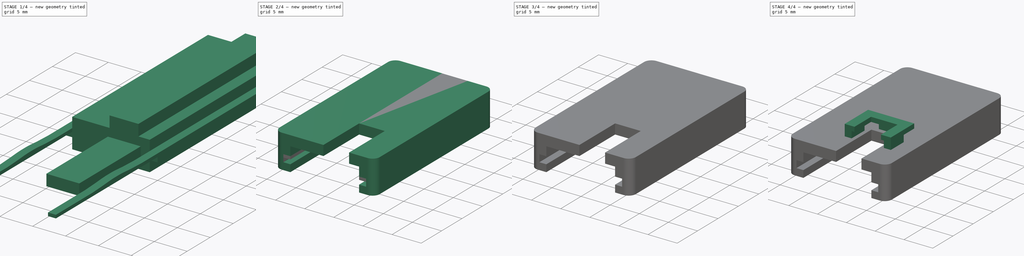
[diagram: build sequence overview — one tinted view per stage of 4, left to right]
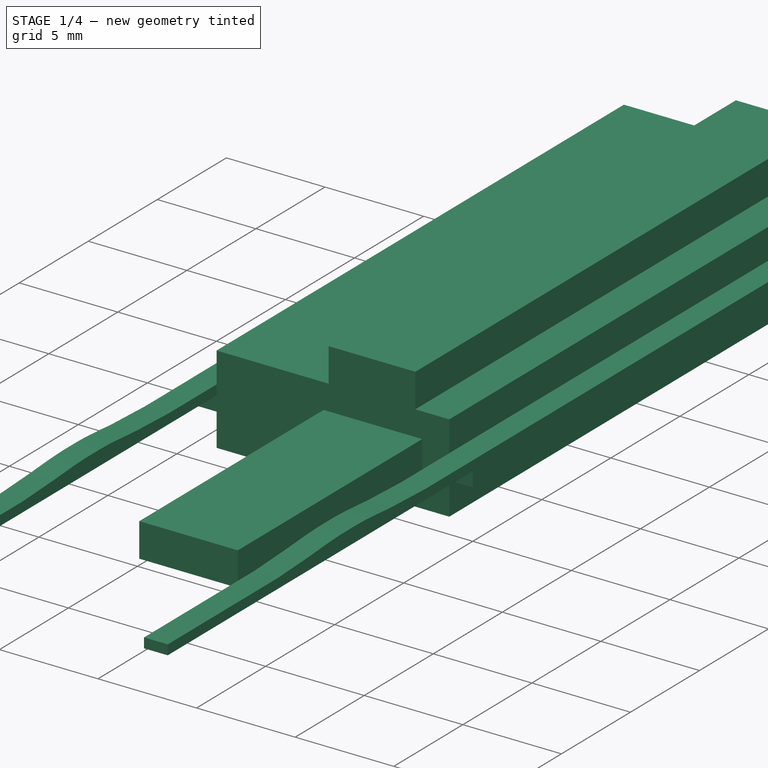
[diagram: stage 1 of 4 — iso view after this stage's code; geometry added in this stage tinted green]
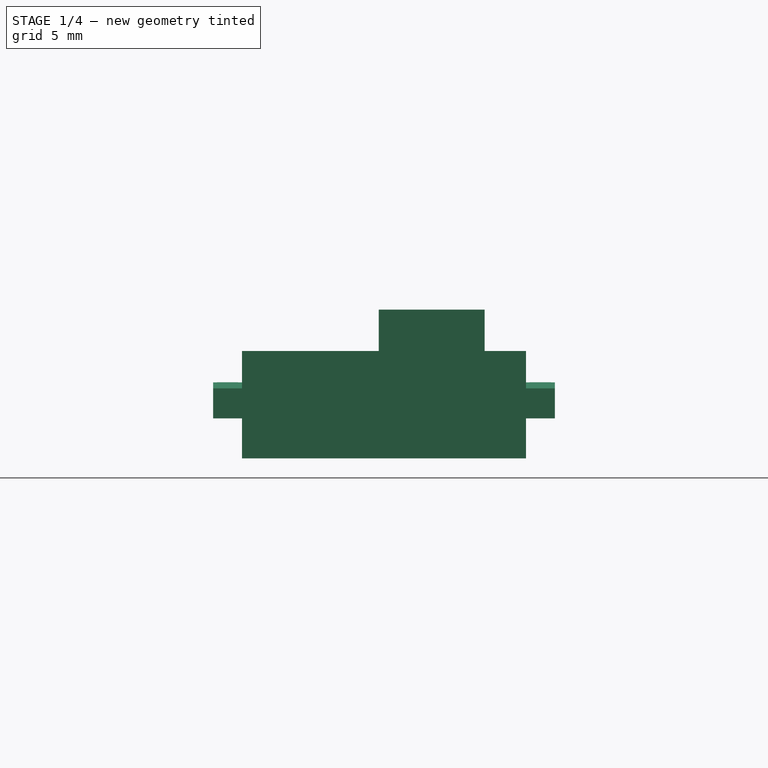
[diagram: stage 1 of 4 — front view after this stage's code; geometry added in this stage tinted green]
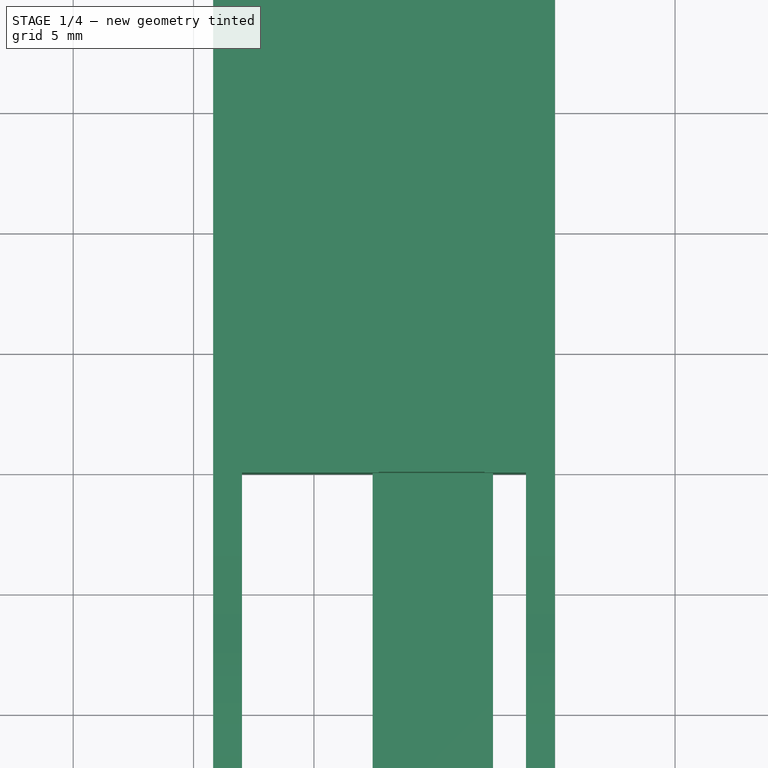
[diagram: stage 1 of 4 — top view after this stage's code; geometry added in this stage tinted green]
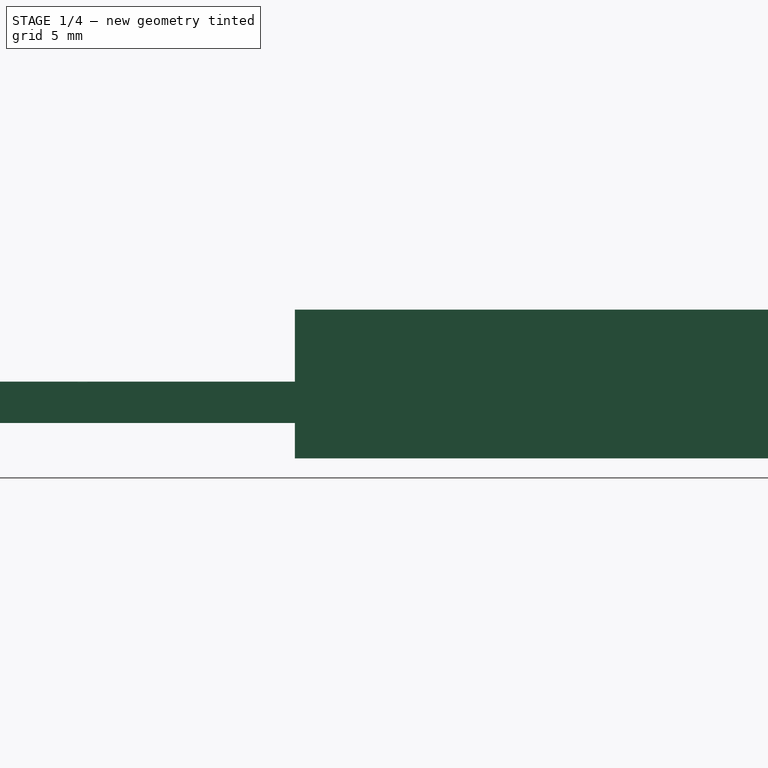
[diagram: stage 1 of 4 — right view after this stage's code; geometry added in this stage tinted green]
FCSTD DOCUMENT  (FreeCAD 0.21R33668 +26 (Git))
Label: HMV080_ANIMATION
License: All rights reserved
LicenseURL: http://en.wikipedia.org/wiki/All_rights_reserved
objects: Part::FeaturePython×5, Sketcher::SketchObject×4, PartDesign::Pad×4, PartDesign::Body×4, Part::Cut×4, App::DocumentObjectGroup×3, PartDesign::CoordinateSystem×1, App::FeaturePython×1, App::Part×1, Part::MultiFuse×1
note: 27 computed .brp shape members not serialized (recipe doc carries the construction recipe); baked Part::Feature solids carry a one-line shape summary decoded from their .brp

FEATURE [PartDesign::Body] Body014
  Group = -> [Sketch016,Pad014]
  Origin = -> Origin014
  Placement = pos=(0,0,-2.75) rot=(0,0,1;0rad)
  Tip = -> Pad014
FEATURE [Sketcher::SketchObject] Sketch023
  FullyConstrained = true
  MapMode = 5
  Placement = pos=(0,0,0) rot=(1,0,0;1.5708rad)
  Support = -> [XZ_Plane021]
  expr: Constraints[29] = .Constraints.pcbz
  sketch-geometry (19):
    g0: LineSegment StartX=3.81 StartY=1.27 StartZ=0 EndX=3.81 EndY=-0.28 EndZ=0
    g1: LineSegment StartX=3.81 StartY=1.27 StartZ=0 EndX=2.09 EndY=1.27 EndZ=0
    g2: LineSegment StartX=2.09 StartY=2.99 StartZ=0 EndX=-2.31 EndY=2.99 EndZ=0
    g3: LineSegment StartX=-2.31 StartY=1.27 StartZ=0 EndX=-7.99 EndY=1.27 EndZ=0
    g4: LineSegment StartX=-7.99 StartY=1.27 StartZ=0 EndX=-7.99 EndY=-0.28 EndZ=0
    g5: LineSegment StartX=-7.99 StartY=-0.28 StartZ=0 EndX=-9.19 EndY=-0.28 EndZ=0
    g6: LineSegment StartX=-9.19 StartY=-0.28 StartZ=0 EndX=-9.19 EndY=-1.53 EndZ=0
    g7: LineSegment StartX=-9.19 StartY=-1.53 StartZ=0 EndX=-7.99 EndY=-1.53 EndZ=0
    g8: LineSegment StartX=-7.99 StartY=-1.53 StartZ=0 EndX=-7.99 EndY=-3.19 EndZ=0
    g9: LineSegment StartX=-7.99 StartY=-3.19 StartZ=0 EndX=3.81 EndY=-3.19 EndZ=0
    g10: LineSegment StartX=3.81 StartY=-3.19 StartZ=0 EndX=3.81 EndY=-1.53 EndZ=0
    g11: LineSegment StartX=3.81 StartY=-1.53 StartZ=0 EndX=5.01 EndY=-1.53 EndZ=0
    g12: LineSegment StartX=5.01 StartY=-1.53 StartZ=0 EndX=5.01 EndY=-0.28 EndZ=0
    g13: LineSegment StartX=5.01 StartY=-0.28 StartZ=0 EndX=3.81 EndY=-0.28 EndZ=0
    g14: LineSegment StartX=-2.31 StartY=2.99 StartZ=0 EndX=-2.31 EndY=1.27 EndZ=0
    g15: LineSegment StartX=2.09 StartY=2.99 StartZ=0 EndX=2.09 EndY=1.27 EndZ=0
    g16: GeomPoint X=-0.11 Y=2.99 Z=0
    g17: GeomPoint X=-2.09 Y=-3.19 Z=0
    g18: GeomPoint X=-2.09 Y=-0.28 Z=0
  constraints (52):
    c: Vertical(g0)
    c: Coincident(g1,g0)
    c: Horizontal(g1)
    c: Horizontal(g2)
    c: Horizontal(g3)
    c: Coincident(g4,g3)
    c: Vertical(g4)
    c: Coincident(g5,g4)
    c: Horizontal(g5)
    c: Coincident(g6,g5)
    c: Vertical(g6)
    c: Coincident(g7,g6)
    c: Horizontal(g7)
    c: Coincident(g8,g7)
    c: Vertical(g8)
    c: Coincident(g9,g8)
    c: Horizontal(g9)
    c: Coincident(g10,g9)
    c: Vertical(g10)
    c: Coincident(g11,g10)
    c: Horizontal(g11)
    c: Coincident(g12,g11)
    c: Vertical(g12)
    c: Coincident(g13,g12)
    c: Coincident(g13,g0)
    c: Horizontal(g13)
    c: DistanceX(g7,g4) = 0
    c: DistanceX(g0,g10) = 0
    c: DistanceX(g2,g2) = 4.4
    c: DistanceY(g6,g6) = 1.25
    c: DistanceY(g12,g12) = 1.25  'pcbz'
    c: DistanceY(g4,g4) = 1.55
    c: DistanceY(g0,g0) = 1.55
    c: DistanceY(g10,g10) = 1.66
    c: DistanceY(g1,g2) = 1.72
    c: DistanceY(g8,g7) = 1.66
    c: Coincident(g14,g2)
    c: Coincident(g14,g3)
    c: Coincident(g15,g2)
    c: Coincident(g15,g1)
    c: Vertical(g15)
    c: Vertical(g14)
    c: DistanceY(g-1,g2) = 2.99
    c: DistanceX(g5,g12) = 14.2
    c: Symmetric(g2,g2,g16)
    c: DistanceX(g16,g12) = 5.12
    c: Symmetric(g9,g8,g17)
    c: DistanceX(g17,g-1) = 2.09
    c: DistanceX(g9,g9) = 11.8
    c: Vertical(g18,g17)
    c: Symmetric(g12,g5,g18)
    c: DistanceX(g17,g16) = 1.98
FEATURE [PartDesign::Pad] Pad021
  Direction = (0,-1,-2e-16)
  Length = 29.5
  Length2 = 10
  Placement = pos=(0,0,0) rot=(1,0,0;1.5708rad)
  Profile = -> Sketch023
  ReferenceAxis = -> Sketch023 [N_Axis]
  Reversed = true
  Type = 0
FEATURE [PartDesign::Body] Body021
  Group = -> [Sketch023,Pad021]
  Origin = -> Origin021
  Placement = pos=(0,-22.1,0) rot=(0,0,1;0rad)
  Tip = -> Pad021
FEATURE [Sketcher::SketchObject] Sketch024
  FullyConstrained = true
  MapMode = 5
  Support = -> [XY_Plane022]
  sketch-geometry (5):
    g0: LineSegment StartX=2.43874 StartY=6.99 StartZ=0 EndX=-2.56126 EndY=6.99 EndZ=0
    g1: LineSegment StartX=-2.56126 StartY=6.99 StartZ=0 EndX=-2.56126 EndY=-13.35 EndZ=0
    g2: LineSegment StartX=2.43874 StartY=6.99 StartZ=0 EndX=2.43874 EndY=-13.35 EndZ=0
    g3: LineSegment StartX=-2.56126 StartY=-13.35 StartZ=0 EndX=2.43874 EndY=-13.35 EndZ=0
    g4: GeomPoint X=-0.06126 Y=6.99 Z=0
  constraints (13):
    c: Horizontal(g0)
    c: Coincident(g1,g0)
    c: Vertical(g1)
    c: Coincident(g2,g0)
    c: Vertical(g2)
    c: Coincident(g3,g1)
    c: Coincident(g3,g2)
    c: Horizontal(g3)
    c: Symmetric(g0,g0,g4)
    c: DistanceY(g-1,g4) = 6.99
    c: DistanceY(g2,g2) = 20.34
    c: DistanceX(g0,g0) = 5
    c: DistanceX(g4,g-1) = 0.06126
FEATURE [PartDesign::Pad] Pad022
  Direction = (0,0,1)
  Length = 1.72
  Length2 = 10
  Profile = -> Sketch024
  ReferenceAxis = -> Sketch024 [N_Axis]
  Reversed = true
  Type = 0
FEATURE [Part::FeaturePython] b_HMV080_flex_slot_mound_001_002  label="HMV080_flex-slot-mound_003"  # a2plus imported part (geometry in sourceFile) (typed FeaturePython)
  Placement = pos=(3.80823,-22.1005,-0.28216) rot=(0,0,1;1.5708rad)
  a2p_Version = 0.4.67
  fixedPosition = false
  objectType = a2pPart
  sourceFile = .\HMV080_flex-slot-mound.FCStd
  subassemblyImport = false
  timeLastImport = 1.73014e+09
  updateColors = true
FEATURE [Part::FeaturePython] b_HMV080_flex_slot_mound_001_003  label="HMV080_flex-slot-mound_004"  # a2plus imported part (geometry in sourceFile) (typed FeaturePython)
  Placement = pos=(-9.18777,-22.1005,-0.28216) rot=(0,0,1;1.5708rad)
  a2p_Version = 0.4.67
  fixedPosition = false
  objectType = a2pPart
  sourceFile = .\HMV080_flex-slot-mound.FCStd
  subassemblyImport = false
  timeLastImport = 1.73014e+09
  updateColors = true
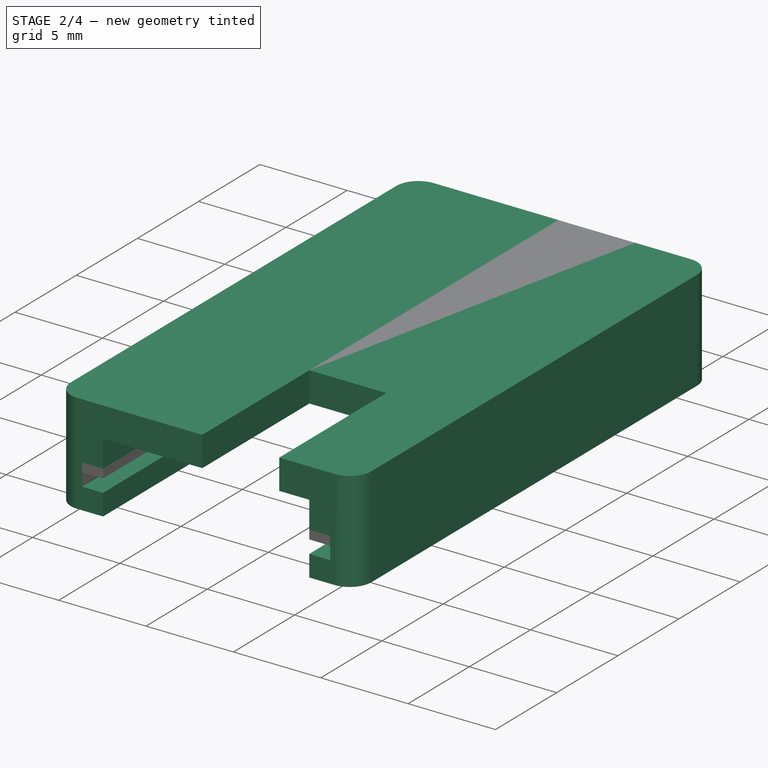
[diagram: stage 2 of 4 — iso view after this stage's code; geometry added in this stage tinted green]
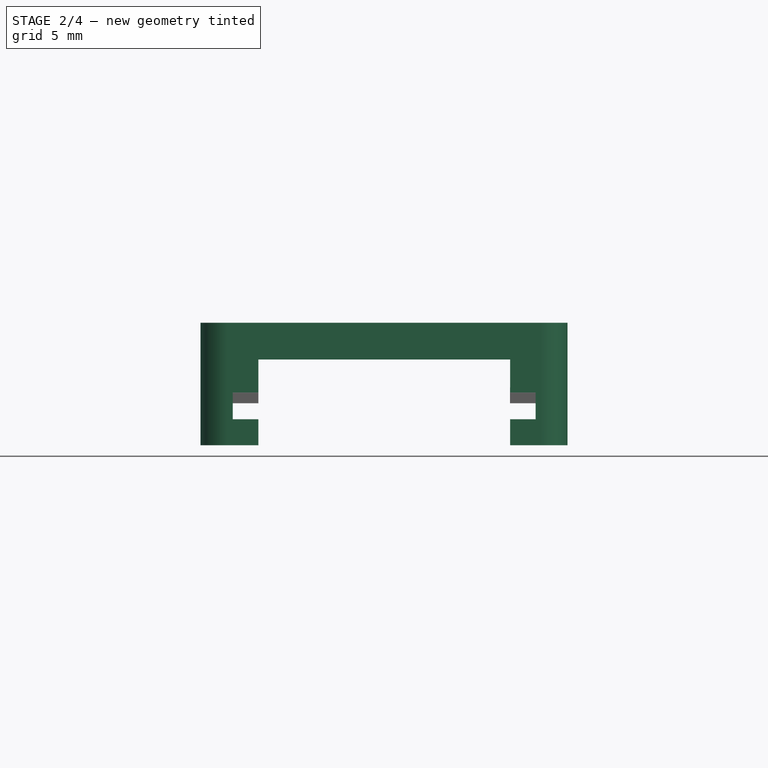
[diagram: stage 2 of 4 — front view after this stage's code; geometry added in this stage tinted green]
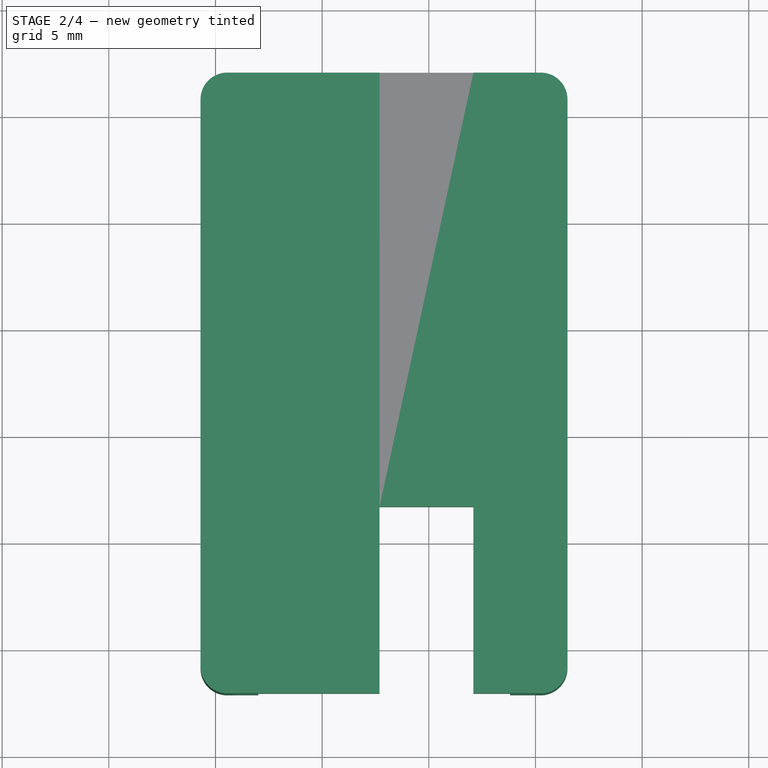
[diagram: stage 2 of 4 — top view after this stage's code; geometry added in this stage tinted green]
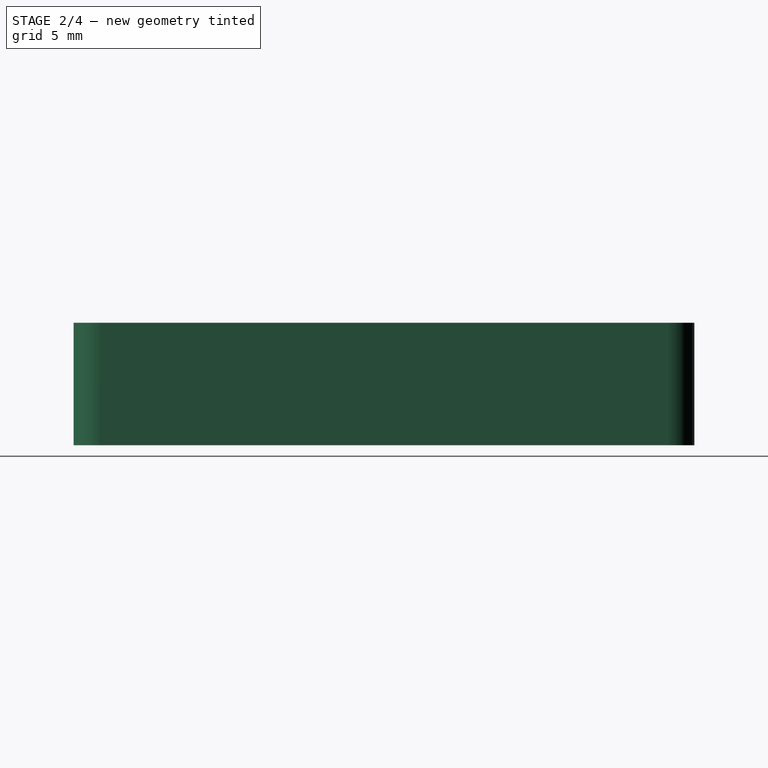
[diagram: stage 2 of 4 — right view after this stage's code; geometry added in this stage tinted green]
FEATURE [Sketcher::SketchObject] Sketch016
  FullyConstrained = true
  MapMode = 5
  Support = -> [XY_Plane014]
  expr: Constraints[23] = .Constraints.arc1
  expr: Constraints[24] = .Constraints.arc1
  expr: Constraints[25] = .Constraints.arc1
  sketch-geometry (12):
    g0: LineSegment StartX=-9.45 StartY=7 StartZ=0 EndX=5.25 EndY=7 EndZ=0
    g1: LineSegment StartX=6.5 StartY=5.75 StartZ=0 EndX=6.5 EndY=-20.85 EndZ=0
    g2: LineSegment StartX=5.25 StartY=-22.1 StartZ=0 EndX=-9.45 EndY=-22.1 EndZ=0
    g3: LineSegment StartX=-10.7 StartY=-20.85 StartZ=0 EndX=-10.7 EndY=5.75 EndZ=0
    g4: ArcOfCircle CenterX=-9.45 CenterY=5.75 CenterZ=0 NormalX=0 NormalY=0 NormalZ=1 AngleXU=0 Radius=1.25 StartAngle=1.5708 EndAngle=3.14159
    g5: GeomPoint X=-10.7 Y=7 Z=0
    g6: ArcOfCircle CenterX=5.25 CenterY=5.75 CenterZ=0 NormalX=0 NormalY=0 NormalZ=1 AngleXU=0 Radius=1.25 StartAngle=6e-16 EndAngle=1.5708
    g7: GeomPoint X=6.5 Y=7 Z=0
    g8: ArcOfCircle CenterX=5.25 CenterY=-20.85 CenterZ=0 NormalX=0 NormalY=0 NormalZ=1 AngleXU=0 Radius=1.25 StartAngle=4.71239 EndAngle=6.28319
    g9: GeomPoint X=6.5 Y=-22.1 Z=0
    g10: ArcOfCircle CenterX=-9.45 CenterY=-20.85 CenterZ=0 NormalX=0 NormalY=0 NormalZ=1 AngleXU=0 Radius=1.25 StartAngle=3.14159 EndAngle=4.71239
    g11: GeomPoint X=-10.7 Y=-22.1 Z=0
  constraints (28):
    c: Horizontal(g0)
    c: Horizontal(g2)
    c: Vertical(g1)
    c: Vertical(g3)
    c: DistanceY(g-1,g7) = 7
    c: DistanceX(g-1,g7) = 6.5
    c: PointOnObject(g5,g0)
    c: PointOnObject(g5,g3)
    c: Tangent(g0,g4) = 1.5708
    c: Tangent(g3,g4) = 1.5708
    c: Diameter(g4) = 2.5  'arc1'
    c: PointOnObject(g7,g0)
    c: PointOnObject(g7,g1)
    c: Tangent(g0,g6) = 1.5708
    c: Tangent(g1,g6) = 1.5708
    c: PointOnObject(g9,g1)
    c: PointOnObject(g9,g2)
    c: Tangent(g1,g8) = 1.5708
    c: Tangent(g2,g8) = 1.5708
    c: PointOnObject(g11,g2)
    c: PointOnObject(g11,g3)
    c: Tangent(g2,g10) = 1.5708
    c: Tangent(g3,g10) = 1.5708
    c: Diameter(g6) = 2.5
    c: Diameter(g8) = 2.5
    c: Diameter(g10) = 2.5
    c: DistanceX(g5,g-1) = 10.7
    c: DistanceY(g9,g-1) = 22.1
FEATURE [PartDesign::Pad] Pad014
  Direction = (0,0,1)
  Length = 5.74
  Length2 = 10
  Profile = -> Sketch016
  ReferenceAxis = -> Sketch016 [N_Axis]
  Type = 0
FEATURE [PartDesign::Body] Body022
  Group = -> [Sketch024,Pad022]
  Origin = -> Origin022
  Placement = pos=(0,0,2.99) rot=(0,0,1;0rad)
  Tip = -> Pad022
FEATURE [Part::Cut] Cut006
  Base = -> Body021
  Tool = -> Body022
FEATURE [Part::Cut] Cut007  label="inner_shell_slots_Cut007"
  Base = -> Body014
  Tool = -> Cut006
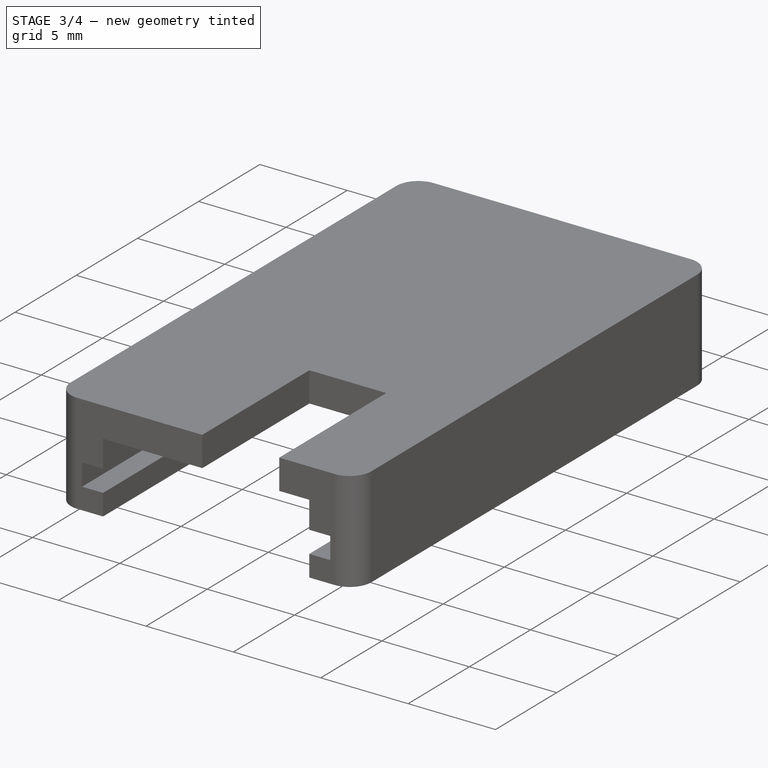
[diagram: stage 3 of 4 — iso view after this stage's code; geometry added in this stage tinted green]
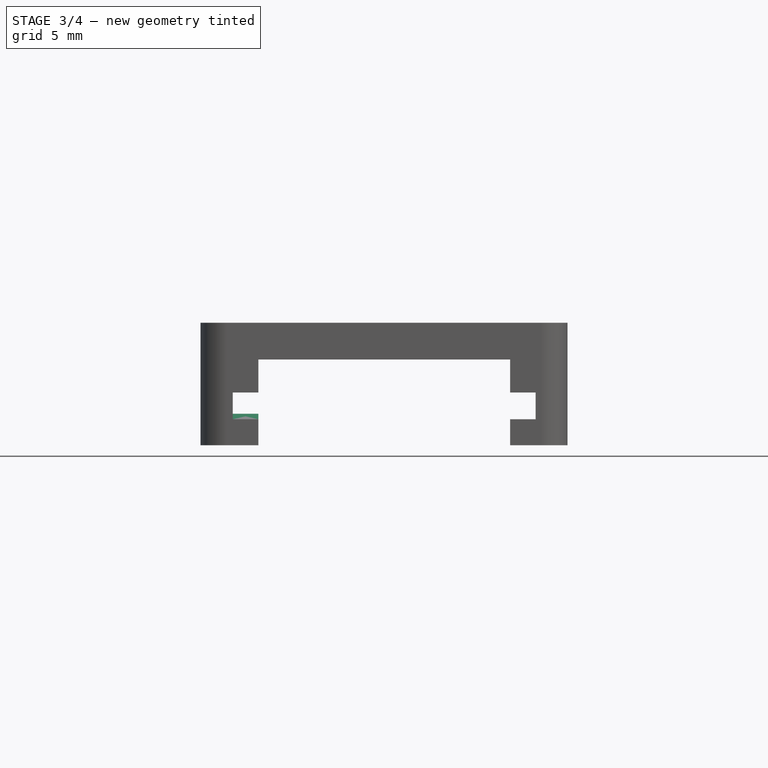
[diagram: stage 3 of 4 — front view after this stage's code; geometry added in this stage tinted green]
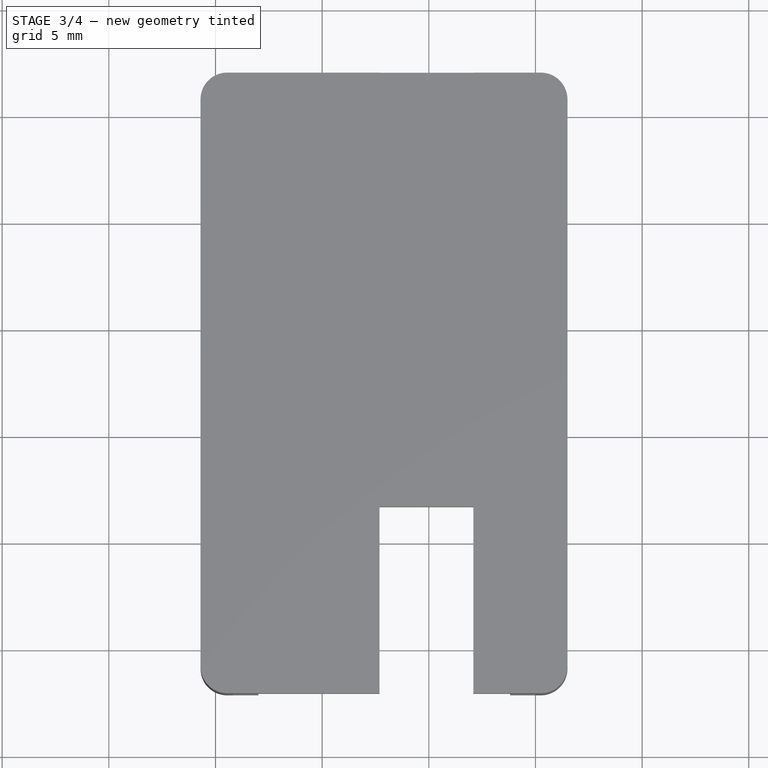
[diagram: stage 3 of 4 — top view after this stage's code; geometry added in this stage tinted green]
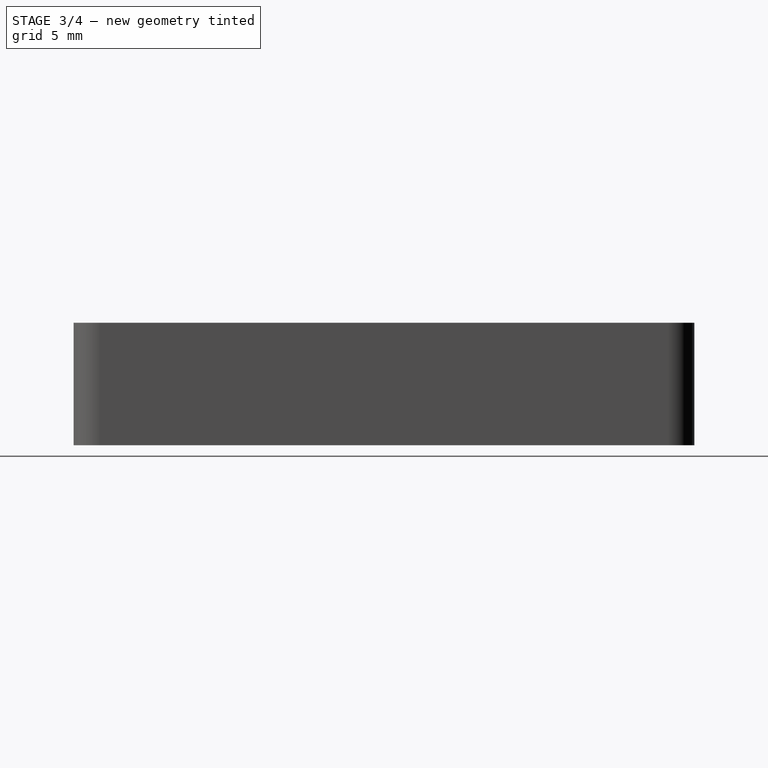
[diagram: stage 3 of 4 — right view after this stage's code; geometry added in this stage tinted green]
FEATURE [Part::FeaturePython] b_HMV080_flex_slot_mound_001_001  label="HMV080_flex-slot-mound_002"  # a2plus imported part (geometry in sourceFile) (typed FeaturePython)
  Placement = pos=(-9.19,-22.1005,-1.53016) rot=(0,0,1;1.5708rad)
  a2p_Version = 0.4.67
  fixedPosition = false
  objectType = a2pPart
  sourceFile = .\HMV080_flex-slot-mound.FCStd
  subassemblyImport = false
  timeLastImport = 1.73014e+09
  updateColors = true
FEATURE [Part::Cut] Cut012
  Base = -> Cut007
  Tool = -> b_HMV080_flex_slot_mound_001_002
FEATURE [Part::Cut] Cut013  label="inner_shell_flex_Cut013"
  Base = -> Cut012
  Tool = -> b_HMV080_flex_slot_mound_001_003
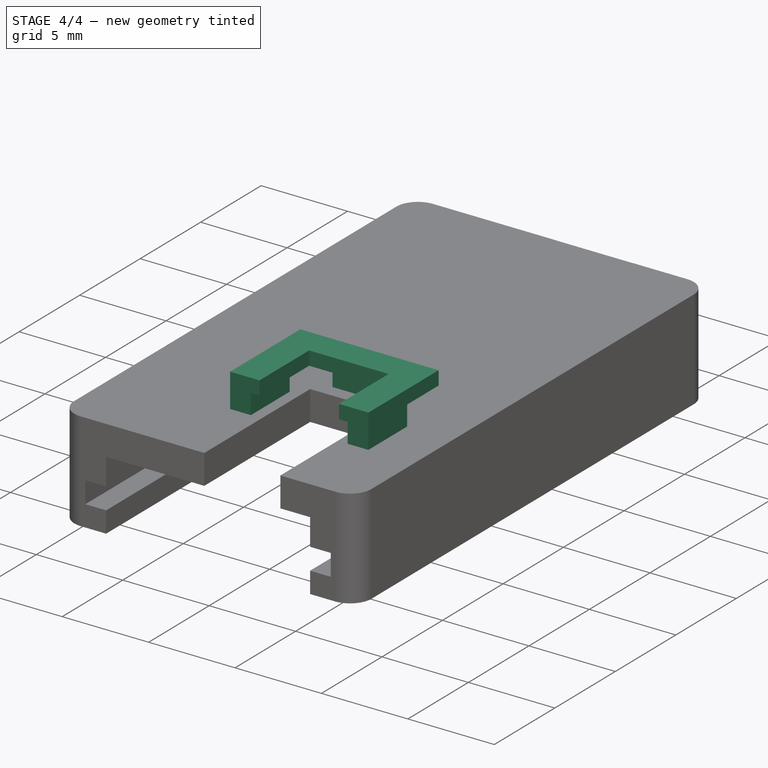
[diagram: stage 4 of 4 — iso view after this stage's code; geometry added in this stage tinted green]
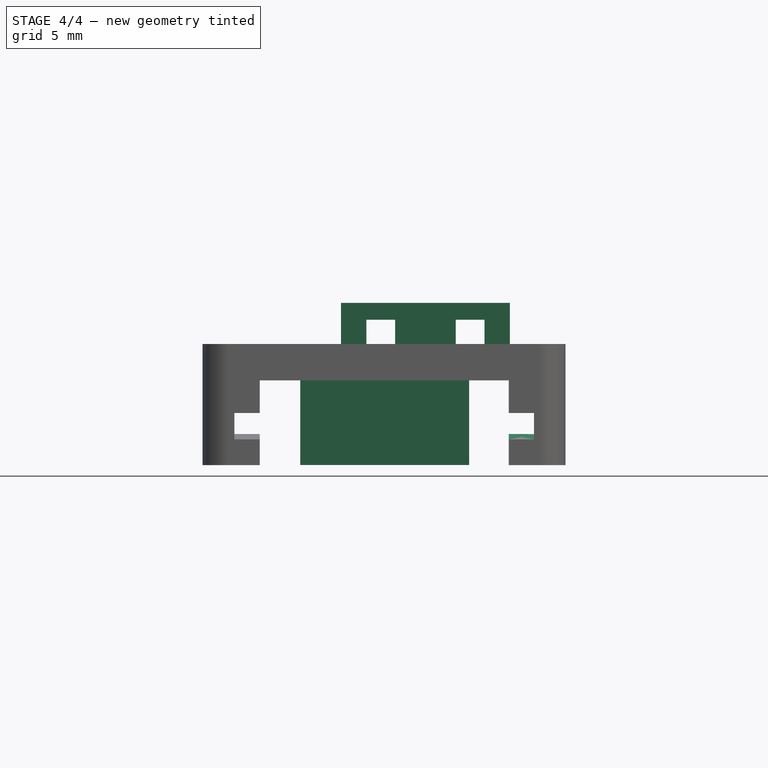
[diagram: stage 4 of 4 — front view after this stage's code; geometry added in this stage tinted green]
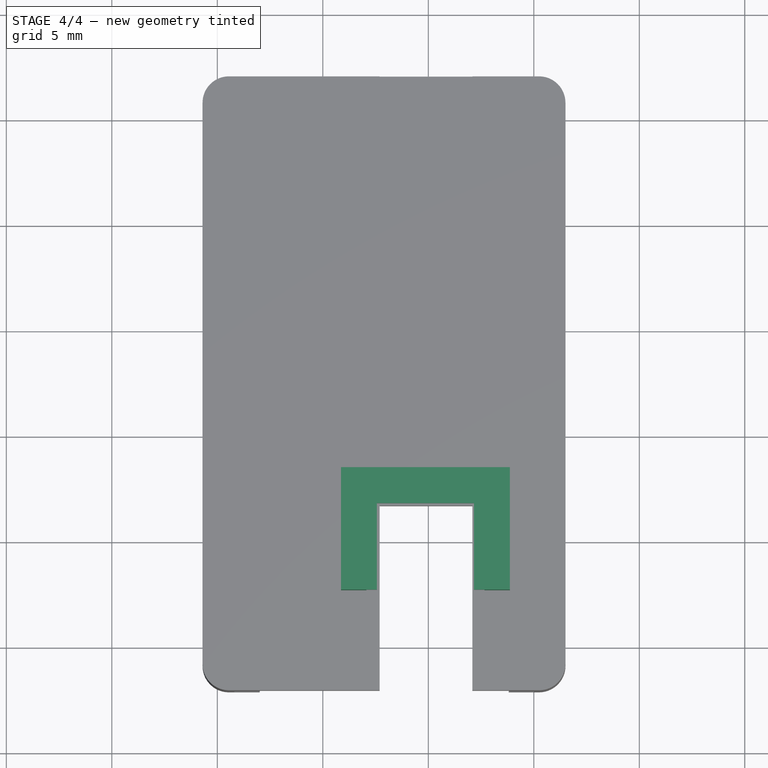
[diagram: stage 4 of 4 — top view after this stage's code; geometry added in this stage tinted green]
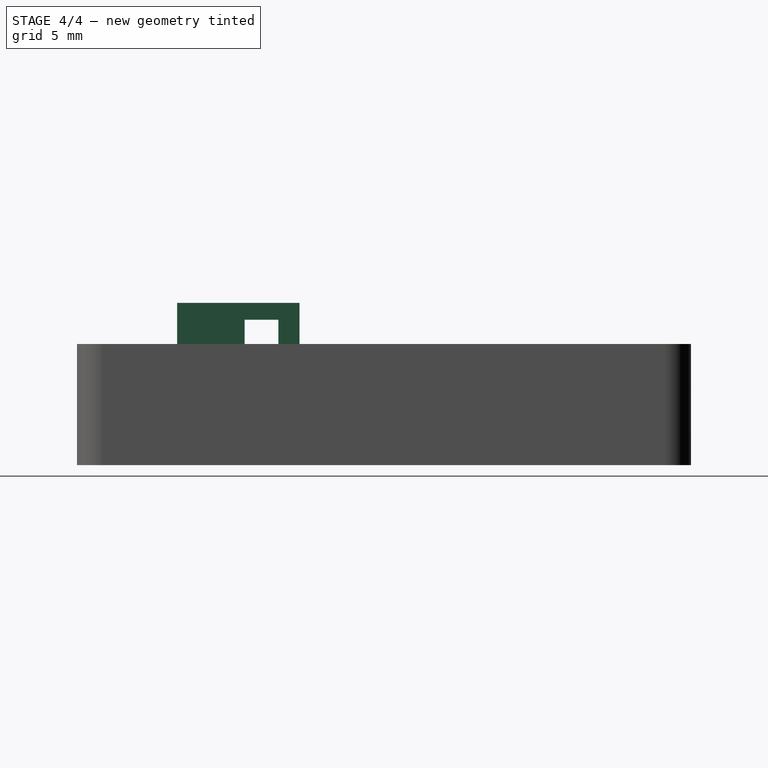
[diagram: stage 4 of 4 — right view after this stage's code; geometry added in this stage tinted green]
FEATURE [PartDesign::CoordinateSystem] LCS_Origin
  AttacherType = Attacher::AttachEngine3D
  MapMode = 2
  Support = -> [X_Axis]
FEATURE [App::DocumentObjectGroup] Constraints
FEATURE [App::FeaturePython] Variables  # WARN: FeaturePython — macro-defined, semantics opaque (R4)
  Transform = 100
  Type = App::PropertyContainer
FEATURE [App::DocumentObjectGroup] Configurations
FEATURE [App::Part] Assembly
  AssemblyType = Part::Link
  Group = -> [LCS_Origin,Constraints,Variables,Configurations]
  Origin = -> Origin
  Type = Assembly
FEATURE [Part::FeaturePython] b_cover_slot_box_001_  label="cover_slot_box_001"  # a2plus imported part (geometry in sourceFile) (typed FeaturePython)
  Placement = pos=(-0.136369,-15.5575,3.24045) rot=(0,0,1;0rad)
  a2p_Version = 0.4.67
  fixedPosition = false
  objectType = a2pPart
  sourceFile = .\cover_slot_box.FCStd
  subassemblyImport = false
  timeLastImport = 1.72987e+09
  updateColors = true
FEATURE [Sketcher::SketchObject] Sketch028
  FullyConstrained = true
  MapMode = 5
  Support = -> [XY_Plane026]
  sketch-geometry (5):
    g0: LineSegment StartX=-6.06669 StartY=6.9955 StartZ=0 EndX=1.93331 EndY=6.9955 EndZ=0
    g1: LineSegment StartX=1.93331 StartY=6.9955 StartZ=0 EndX=1.93331 EndY=5.5455 EndZ=0
    g2: LineSegment StartX=1.93331 StartY=5.5455 StartZ=0 EndX=-6.06669 EndY=5.5455 EndZ=0
    g3: LineSegment StartX=-6.06669 StartY=5.5455 StartZ=0 EndX=-6.06669 EndY=6.9955 EndZ=0
    g4: GeomPoint X=-2.06669 Y=6.2705 Z=0
  constraints (13):
    c: Coincident(g0,g1)
    c: Coincident(g1,g2)
    c: Coincident(g2,g3)
    c: Coincident(g3,g0)
    c: Horizontal(g0)
    c: Horizontal(g2)
    c: Vertical(g1)
    c: Vertical(g3)
    c: Symmetric(g1,g0,g4)
    c: DistanceX(g4) = -2.06669
    c: DistanceY(g4) = 6.2705
    c: DistanceX(g0,g0) = 8
    c: DistanceY(g1,g1) = 1.45
FEATURE [PartDesign::Pad] Pad026
  Direction = (0,0,1)
  Length = 4.02
  Length2 = 10
  Profile = -> Sketch028
  ReferenceAxis = -> Sketch028 [N_Axis]
  Reversed = true
  Type = 0
FEATURE [PartDesign::Body] Body026  label="Back_wall_PCB_stop_Body026"
  Group = -> [Sketch028,Pad026]
  Origin = -> Origin026
  Placement = pos=(0,0,1.275) rot=(0,0,1;0rad)
  Tip = -> Pad026
FEATURE [Part::FeaturePython] b_HMV080_flex_slot_mound_001_  label="HMV080_flex-slot-mound_001"  # a2plus imported part (geometry in sourceFile) (typed FeaturePython)
  Placement = pos=(3.81023,-22.1005,-1.53016) rot=(0,0,1;1.5708rad)
  a2p_Version = 0.4.67
  fixedPosition = false
  objectType = a2pPart
  sourceFile = .\HMV080_flex-slot-mound.FCStd
  subassemblyImport = false
  timeLastImport = 1.73014e+09
  updateColors = true
FEATURE [Part::MultiFuse] Fusion
  Shapes = -> [b_cover_slot_box_001_,Body026,b_HMV080_flex_slot_mound_001_,b_HMV080_flex_slot_mound_001_001,Cut013]
FEATURE [App::DocumentObjectGroup] Parts
  Group = -> [Fusion]
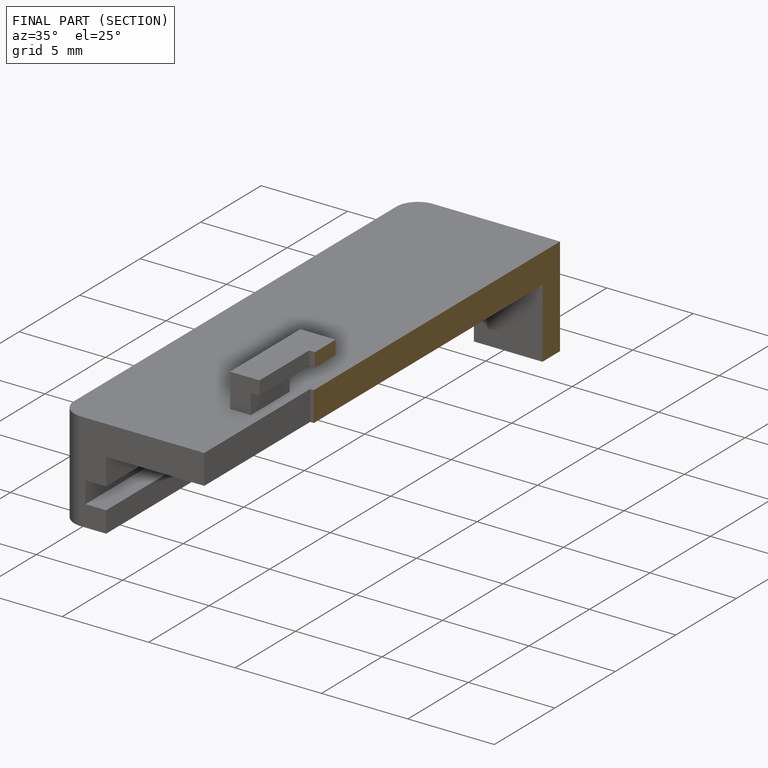
[diagram: finished part — half-section view (interior)]
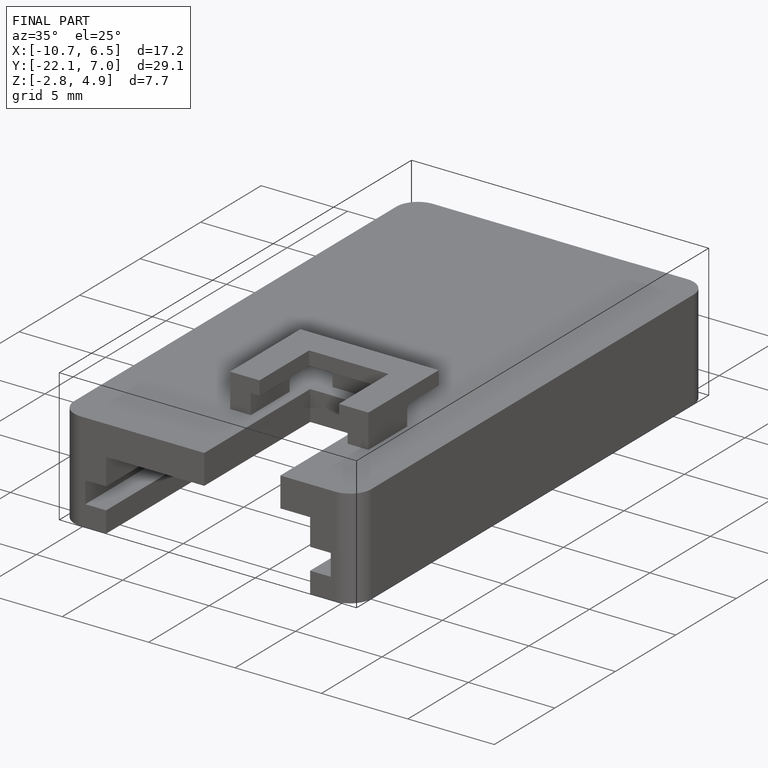
[diagram: finished part — iso view with bounding-box wireframe]
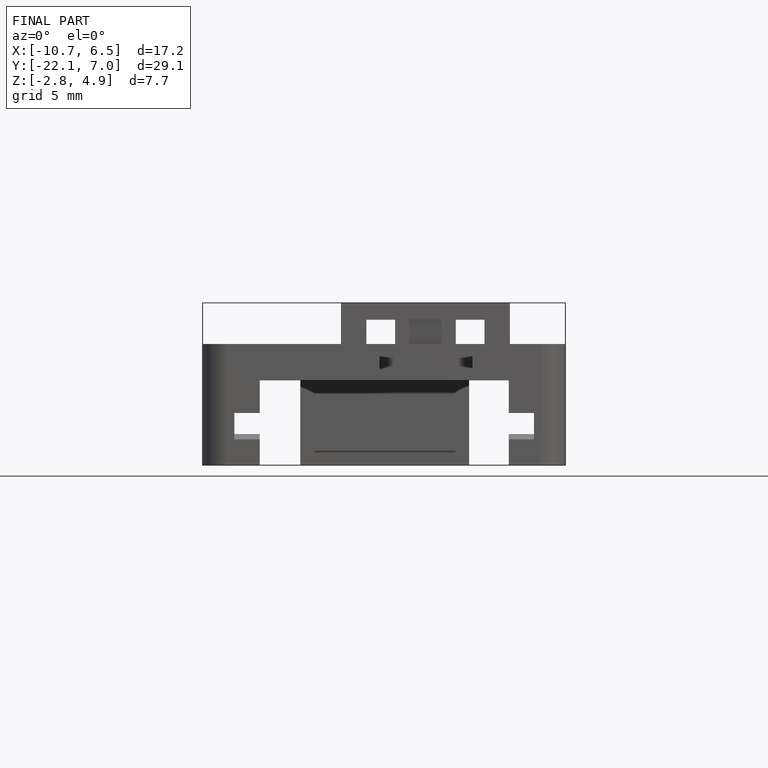
[diagram: finished part — front view with bounding-box wireframe]
